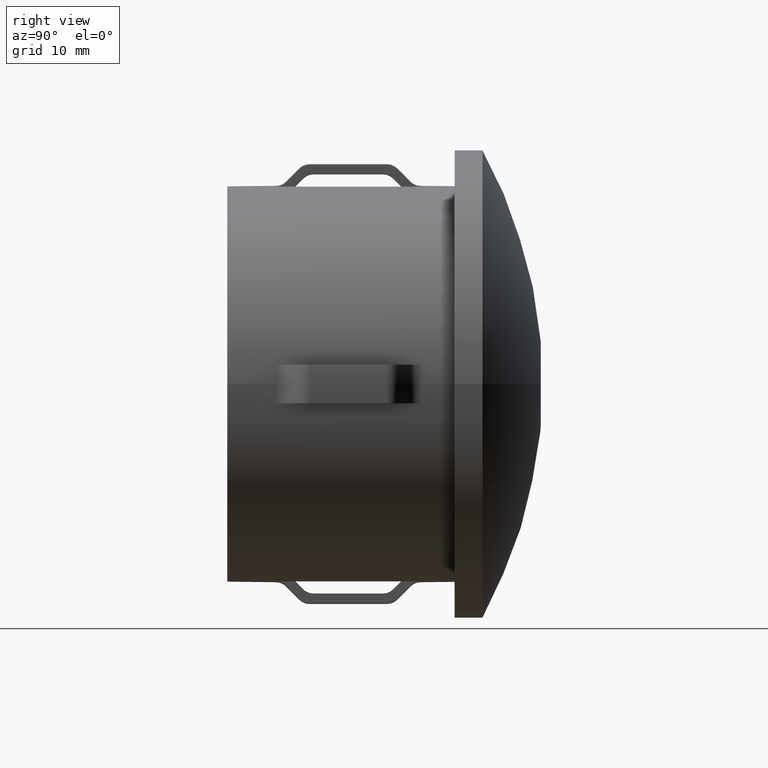
[diagram: clean part render]
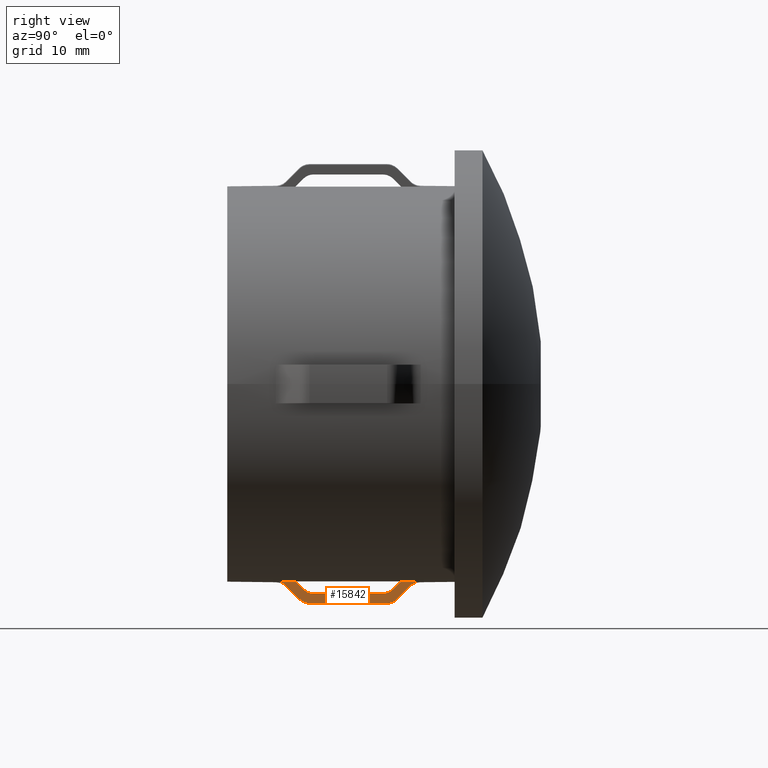
[diagram: same view with one face highlighted and labeled with its STEP entity id]
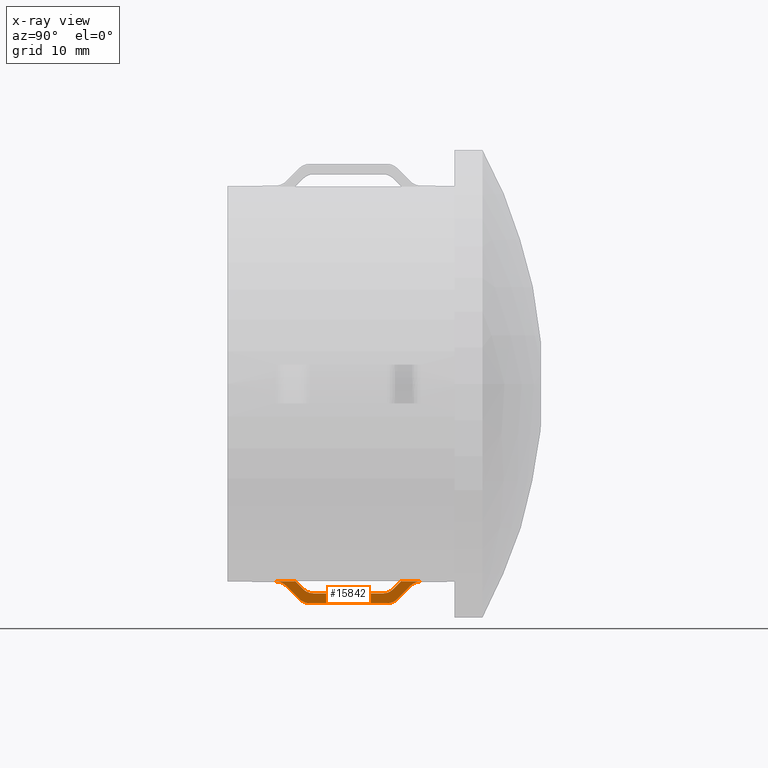
[diagram: x-ray of the same camera — body ghosted, the highlighted face saturated]
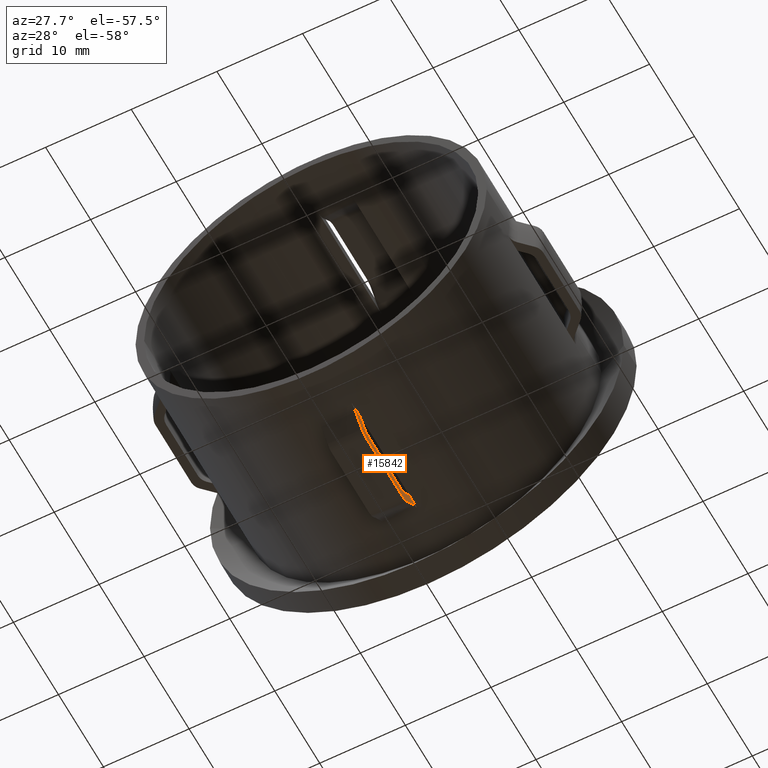
[diagram: same view with one face highlighted and labeled with its STEP entity id]
A machine part, right view. The second image highlights one B-rep face of the part: STEP entity #15842.
The next image is the same camera in x-ray: the body ghosted, the highlighted face saturated — about 0% of this face is hidden behind the body in this view.
A second angle (auxiliary view) of the same face is appended — the face is thin or edge-on in the first view.
In plain terms, the highlighted planar face has unit normal (-1, 0, -0).
Its self-contained STEP definition (entity closure, byte-faithful):
#151 = EDGE_CURVE ( 'NONE', #6780, #7759, #12415, .T. ) ;
#164 = CARTESIAN_POINT ( 'NONE',  ( 2.000000000000002200, 17.64971503335651800, -22.13881031767017800 ) ) ;
#215 = CARTESIAN_POINT ( 'NONE',  ( 2.000000000000002200, 17.73140875742467100, -22.05678271087044400 ) ) ;
#248 = CARTESIAN_POINT ( 'NONE',  ( 2.000000000000001800, 6.621696296803564000, -21.39236945254083700 ) ) ;
#329 = CARTESIAN_POINT ( 'NONE',  ( 2.000000000000002200, 17.81310059500204400, -21.97475322538546600 ) ) ;
#349 = CARTESIAN_POINT ( 'NONE',  ( 2.000000000000002200, 18.93933982822023400, -20.84360699211365300 ) ) ;
#380 = CARTESIAN_POINT ( 'NONE',  ( 2.000000000000002700, 16.90239420996661600, -22.62191776082294900 ) ) ;
#520 = ORIENTED_EDGE ( 'NONE', *, *, #12430, .T. ) ;
#866 = EDGE_CURVE ( 'NONE', #17016, #11808, #985, .T. ) ;
#985 = B_SPLINE_CURVE_WITH_KNOTS ( 'NONE', 3,
 ( #11991, #10879, #380, #9602, #7216, #16474 ),
 .UNSPECIFIED., .F., .F.,
 ( 4, 2, 4 ),
 ( 0.009081134043375228100, 0.009667044988691527600, 0.01025295593400782500 ),
 .UNSPECIFIED. ) ;
#1075 = ORIENTED_EDGE ( 'NONE', *, *, #10528, .T. ) ;
#1158 = EDGE_CURVE ( 'NONE', #2475, #4916, #5022, .T. ) ;
#1386 = EDGE_CURVE ( 'NONE', #14067, #6780, #14751, .T. ) ;
#1457 = CARTESIAN_POINT ( 'NONE',  ( 2.000000000000002200, 20.00000000000000000, -20.40220576310324700 ) ) ;
#1645 = CARTESIAN_POINT ( 'NONE',  ( 2.000000000000002200, 18.18855568121824700, -21.59774631186289200 ) ) ;
#1684 = EDGE_CURVE ( 'NONE', #11025, #7403, #10404, .T. ) ;
#1801 = CARTESIAN_POINT ( 'NONE',  ( 2.000000000000002700, 7.753500041183506200, -22.47260001826553500 ) ) ;
#1926 = CARTESIAN_POINT ( 'NONE',  ( 1.999999999999941200, 8.921572875253817300, -21.65785077056359900 ) ) ;
#2092 = CARTESIAN_POINT ( 'NONE',  ( 2.000000000000001800, 7.050252531694318300, -20.40220576310324700 ) ) ;
#2257 = LINE ( 'NONE', #7532, #6376 ) ;
#2475 = VERTEX_POINT ( 'NONE', #6069 ) ;
#2539 = DIRECTION ( 'NONE',  ( -2.449293598294745400E-017, -1.000000000000000000, -0.0000000000000000000 ) ) ;
#2795 = CARTESIAN_POINT ( 'NONE',  ( 2.000000000000002700, 20.00000000000000000, -22.66191739460727200 ) ) ;
#2938 = VECTOR ( 'NONE', #15361, 1000.000000000000000 ) ;
#2994 = CARTESIAN_POINT ( 'NONE',  ( 2.000000000000002200, 5.407139372087926600, -20.44130786524771500 ) ) ;
#3474 = CARTESIAN_POINT ( 'NONE',  ( 2.000000000000002200, 19.60777366153797600, -20.44120994785984300 ) ) ;
#3525 = CARTESIAN_POINT ( 'NONE',  ( 2.000000000000002200, 17.56801948466537400, -22.22083610714977200 ) ) ;
#4037 = B_SPLINE_CURVE_WITH_KNOTS ( 'NONE', 3,
 ( #16579, #4730, #5877, #15144, #16460, #7253, #8534, #16515 ),
 .UNSPECIFIED., .F., .F.,
 ( 4, 2, 2, 4 ),
 ( 0.008505641674036418200, 0.008798482639833793400, 0.009091323605631168600, 0.009677005537225906800 ),
 .UNSPECIFIED. ) ;
#4216 = PLANE ( 'NONE',  #10769 ) ;
#4390 = CARTESIAN_POINT ( 'NONE',  ( 2.000000000000001800, 6.257473926619709000, -21.02653846795080400 ) ) ;
#4446 = CARTESIAN_POINT ( 'NONE',  ( 2.000000000000002200, 7.446699141100956400, -22.22083610714603500 ) ) ;
#4722 = LINE ( 'NONE', #2795, #16508 ) ;
#4730 = CARTESIAN_POINT ( 'NONE',  ( 2.000000000000001800, 17.08447190062587500, -21.28624425371053200 ) ) ;
#4789 = CARTESIAN_POINT ( 'NONE',  ( 2.000000000000001800, 7.140705344057870700, -20.49309022617566000 ) ) ;
#4845 = CARTESIAN_POINT ( 'NONE',  ( 2.000000000000001800, 7.050252531694318300, -20.40220576310324700 ) ) ;
#4889 = CARTESIAN_POINT ( 'NONE',  ( 2.000000000000002200, 19.80265252604834800, -20.40220576310319700 ) ) ;
#4916 = VERTEX_POINT ( 'NONE', #7897 ) ;
#5022 = B_SPLINE_CURVE_WITH_KNOTS ( 'NONE', 3,
 ( #8270, #9588, #2994, #14926, #8372, #9816 ),
 .UNSPECIFIED., .F., .F.,
 ( 4, 2, 4 ),
 ( 0.009254496920824750700, 0.009840704565716463700, 0.01042691221060817700 ),
 .UNSPECIFIED. ) ;
#5251 = VERTEX_POINT ( 'NONE', #13236 ) ;
#5393 = FACE_OUTER_BOUND ( 'NONE', #6514, .T. ) ;
#5685 = CARTESIAN_POINT ( 'NONE',  ( 2.000000000000002200, 16.09314575050768100, -21.65785077056358100 ) ) ;
#5711 = CARTESIAN_POINT ( 'NONE',  ( 2.000000000000002200, 7.171676713612293400, -21.94470194685922900 ) ) ;
#5826 = VERTEX_POINT ( 'NONE', #2092 ) ;
#5838 = CARTESIAN_POINT ( 'NONE',  ( 2.000000000000002700, 8.114366583345418600, -22.62247926174308100 ) ) ;
#5877 = CARTESIAN_POINT ( 'NONE',  ( 2.000000000000002200, 17.00775000903831100, -21.34942363214788900 ) ) ;
#5891 = CARTESIAN_POINT ( 'NONE',  ( 2.000000000000002200, 7.586443247838528400, -22.36114510638428900 ) ) ;
#5913 = B_SPLINE_CURVE_WITH_KNOTS ( 'NONE', 3,
 ( #15240, #16737, #9989, #7303, #16621, #14096, #13967 ),
 .UNSPECIFIED., .F., .F.,
 ( 4, 3, 4 ),
 ( 0.002246570569327221000, 0.003180430145773975900, 0.003395662598586194300 ),
 .UNSPECIFIED. ) ;
#6069 = CARTESIAN_POINT ( 'NONE',  ( 2.000000000000001800, 5.014718625761436700, -20.40220576310324700 ) ) ;
#6205 = CARTESIAN_POINT ( 'NONE',  ( 2.000000000000002700, 19.24339599958193100, -20.59297624767183500 ) ) ;
#6376 = VECTOR ( 'NONE', #8750, 1000.000000000000000 ) ;
#6433 = ORIENTED_EDGE ( 'NONE', *, *, #1386, .T. ) ;
#6451 = VERTEX_POINT ( 'NONE', #15238 ) ;
#6514 = EDGE_LOOP ( 'NONE', ( #14832, #16418, #15335, #10261, #6433, #7542, #10345, #16441, #6986, #520, #10299, #9273, #9287, #1075 ) ) ;
#6532 = CARTESIAN_POINT ( 'NONE',  ( 2.000000000000002700, 8.529267426006425600, -21.61882315188119100 ) ) ;
#6612 = DIRECTION ( 'NONE',  ( -2.449293598294745400E-017, -1.000000000000000000, -0.0000000000000000000 ) ) ;
#6780 = VERTEX_POINT ( 'NONE', #1926 ) ;
#6787 = CARTESIAN_POINT ( 'NONE',  ( 2.000000000000002700, 16.50735931288072000, -22.66191739460727200 ) ) ;
#6887 = CARTESIAN_POINT ( 'NONE',  ( 2.000000000000002200, 7.446699141100956400, -22.22083610714603500 ) ) ;
#6910 = CARTESIAN_POINT ( 'NONE',  ( 1.999999999999999100, 20.00000000000000000, 2.938513425430441800E-016 ) ) ;
#6969 = DIRECTION ( 'NONE',  ( -1.000000000000000000, 2.449293598294745400E-017, -1.469256712715221700E-016 ) ) ;
#6986 = ORIENTED_EDGE ( 'NONE', *, *, #1158, .T. ) ;
#7216 = CARTESIAN_POINT ( 'NONE',  ( 2.000000000000002200, 17.42988710591840400, -22.35952686324457900 ) ) ;
#7253 = CARTESIAN_POINT ( 'NONE',  ( 2.000000000000002200, 16.48531853786557000, -21.61897279726616400 ) ) ;
#7303 = CARTESIAN_POINT ( 'NONE',  ( 2.000000000000002200, 17.30565884786752000, -21.06407187800683900 ) ) ;
#7403 = VERTEX_POINT ( 'NONE', #7526 ) ;
#7524 = CARTESIAN_POINT ( 'NONE',  ( 2.000000000000001800, 19.07841384121729800, -20.70389422452397100 ) ) ;
#7526 = CARTESIAN_POINT ( 'NONE',  ( 2.000000000000002700, 20.00000000000005300, -20.40220576310318600 ) ) ;
#7532 = CARTESIAN_POINT ( 'NONE',  ( 2.000000000000002200, 20.00000000000000000, -20.40220576310324700 ) ) ;
#7542 = ORIENTED_EDGE ( 'NONE', *, *, #151, .T. ) ;
#7622 = B_SPLINE_CURVE_WITH_KNOTS ( 'NONE', 3,
 ( #8059, #164, #215, #329, #1645, #10882, #16086 ),
 .UNSPECIFIED., .F., .F.,
 ( 4, 3, 4 ),
 ( 0.004147120122152835400, 0.004494426224238110000, 0.006090642564517800800 ),
 .UNSPECIFIED. ) ;
#7713 = EDGE_CURVE ( 'NONE', #13952, #5251, #16523, .T. ) ;
#7759 = VERTEX_POINT ( 'NONE', #13996 ) ;
#7897 = CARTESIAN_POINT ( 'NONE',  ( 2.000000000000001800, 6.075378797541309200, -20.84360699211369200 ) ) ;
#8059 = CARTESIAN_POINT ( 'NONE',  ( 2.000000000000002200, 17.56801948466537400, -22.22083610714977200 ) ) ;
#8146 = CARTESIAN_POINT ( 'NONE',  ( 2.000000000000001800, 6.896674935467547000, -21.66854721844091700 ) ) ;
#8270 = CARTESIAN_POINT ( 'NONE',  ( 2.000000000000001800, 5.014718625761436700, -20.40220576310324700 ) ) ;
#8314 = CARTESIAN_POINT ( 'NONE',  ( 2.000000000000001800, 6.075378797541309200, -20.84360699211369200 ) ) ;
#8372 = CARTESIAN_POINT ( 'NONE',  ( 2.000000000000001800, 5.935911984129018200, -20.70349962001135000 ) ) ;
#8534 = CARTESIAN_POINT ( 'NONE',  ( 2.000000000000002200, 16.28839869969592900, -21.65785077056358400 ) ) ;
#8707 = CARTESIAN_POINT ( 'NONE',  ( 2.000000000000001800, 7.080403149440500400, -20.43250090231392600 ) ) ;
#8750 = DIRECTION ( 'NONE',  ( -2.449293598294745400E-017, -1.000000000000000000, -0.0000000000000000000 ) ) ;
#8894 = CARTESIAN_POINT ( 'NONE',  ( 2.000000000000002700, 30.10000000000000100, -21.65785077056359900 ) ) ;
#8994 = B_SPLINE_CURVE_WITH_KNOTS ( 'NONE', 3,
 ( #8314, #4390, #16058, #248, #8146, #5711, #4446 ),
 .UNSPECIFIED., .F., .F.,
 ( 4, 3, 4 ),
 ( 0.003720086039007983500, 0.004494426394377412800, 0.005663608393907726400 ),
 .UNSPECIFIED. ) ;
#9273 = ORIENTED_EDGE ( 'NONE', *, *, #13850, .F. ) ;
#9287 = ORIENTED_EDGE ( 'NONE', *, *, #866, .T. ) ;
#9588 = CARTESIAN_POINT ( 'NONE',  ( 2.000000000000001800, 5.211857639609599200, -20.40220576310322900 ) ) ;
#9602 = CARTESIAN_POINT ( 'NONE',  ( 2.000000000000002200, 17.26294200077579100, -22.47159454470365600 ) ) ;
#9816 = CARTESIAN_POINT ( 'NONE',  ( 2.000000000000001800, 6.075378797541309200, -20.84360699211369200 ) ) ;
#9823 = EDGE_CURVE ( 'NONE', #5826, #2475, #17007, .T. ) ;
#9969 = VECTOR ( 'NONE', #2539, 1000.000000000000000 ) ;
#9989 = CARTESIAN_POINT ( 'NONE',  ( 2.000000000000002200, 17.52527724574000000, -20.84346574946647500 ) ) ;
#10053 = EDGE_CURVE ( 'NONE', #7759, #5826, #13026, .T. ) ;
#10261 = ORIENTED_EDGE ( 'NONE', *, *, #11182, .T. ) ;
#10299 = ORIENTED_EDGE ( 'NONE', *, *, #7713, .T. ) ;
#10345 = ORIENTED_EDGE ( 'NONE', *, *, #10053, .T. ) ;
#10404 = B_SPLINE_CURVE_WITH_KNOTS ( 'NONE', 3,
 ( #16719, #7524, #6205, #3474, #4889, #14013 ),
 .UNSPECIFIED., .F., .F.,
 ( 4, 2, 4 ),
 ( 0.009273504084595013400, 0.009859735808009487100, 0.01044596753142395900 ),
 .UNSPECIFIED. ) ;
#10464 = CARTESIAN_POINT ( 'NONE',  ( 2.000000000000002200, 17.96446609406720900, -20.40220576310324700 ) ) ;
#10523 = CARTESIAN_POINT ( 'NONE',  ( 1.999999999999941200, 8.921572875253817300, -21.65785077056359900 ) ) ;
#10528 = EDGE_CURVE ( 'NONE', #11808, #11025, #7622, .T. ) ;
#10685 = DIRECTION ( 'NONE',  ( -1.469256712715221700E-016, 0.0000000000000000000, 1.000000000000000000 ) ) ;
#10769 = AXIS2_PLACEMENT_3D ( 'NONE', #6910, #6969, #10685 ) ;
#10879 = CARTESIAN_POINT ( 'NONE',  ( 2.000000000000001800, 16.70528998291491600, -22.66191739460723300 ) ) ;
#10882 = CARTESIAN_POINT ( 'NONE',  ( 2.000000000000002200, 18.56397103355067200, -21.22069982232625700 ) ) ;
#11025 = VERTEX_POINT ( 'NONE', #349 ) ;
#11182 = EDGE_CURVE ( 'NONE', #6451, #14067, #4037, .T. ) ;
#11303 = CARTESIAN_POINT ( 'NONE',  ( 2.000000000000001800, 7.380755060382427700, -20.73428041770122800 ) ) ;
#11687 = CARTESIAN_POINT ( 'NONE',  ( 2.000000000000002200, 7.860912703474021200, -21.21660286089850100 ) ) ;
#11739 = CARTESIAN_POINT ( 'NONE',  ( 2.000000000000002200, 7.999572960508823300, -21.35587782571605000 ) ) ;
#11808 = VERTEX_POINT ( 'NONE', #3525 ) ;
#11991 = CARTESIAN_POINT ( 'NONE',  ( 2.000000000000002700, 16.50735931288072000, -22.66191739460727200 ) ) ;
#12415 = B_SPLINE_CURVE_WITH_KNOTS ( 'NONE', 3,
 ( #10523, #15732, #6532, #14338, #11739, #11687 ),
 .UNSPECIFIED., .F., .F.,
 ( 4, 2, 4 ),
 ( 0.008642550998422548300, 0.009228730044687258300, 0.009814909090951968300 ),
 .UNSPECIFIED. ) ;
#12430 = EDGE_CURVE ( 'NONE', #4916, #13952, #8994, .T. ) ;
#12547 = EDGE_CURVE ( 'NONE', #14542, #6451, #5913, .T. ) ;
#12687 = CARTESIAN_POINT ( 'NONE',  ( 2.000000000000002200, 7.620824840368063000, -20.97545064178190800 ) ) ;
#12753 = CARTESIAN_POINT ( 'NONE',  ( 2.000000000000001800, 7.110554088309498000, -20.46279572193698800 ) ) ;
#13026 = B_SPLINE_CURVE_WITH_KNOTS ( 'NONE', 3,
 ( #13915, #12687, #11303, #4789, #12753, #8707, #4845 ),
 .UNSPECIFIED., .F., .F.,
 ( 4, 3, 4 ),
 ( 0.002159563257574182700, 0.003180430118941530400, 0.003308655296235860700 ),
 .UNSPECIFIED. ) ;
#13236 = CARTESIAN_POINT ( 'NONE',  ( 2.000000000000002200, 8.507359312880781800, -22.66191739460727200 ) ) ;
#13609 = EDGE_CURVE ( 'NONE', #7403, #14542, #2257, .T. ) ;
#13759 = CARTESIAN_POINT ( 'NONE',  ( 2.000000000000002200, 7.446699141100956400, -22.22083610714603500 ) ) ;
#13850 = EDGE_CURVE ( 'NONE', #17016, #5251, #4722, .T. ) ;
#13915 = CARTESIAN_POINT ( 'NONE',  ( 2.000000000000002200, 7.860912703474021200, -21.21660286089850100 ) ) ;
#13952 = VERTEX_POINT ( 'NONE', #6887 ) ;
#13967 = CARTESIAN_POINT ( 'NONE',  ( 2.000000000000002200, 17.15380592228750300, -21.21660286089844400 ) ) ;
#13996 = CARTESIAN_POINT ( 'NONE',  ( 2.000000000000002200, 7.860912703474021200, -21.21660286089850100 ) ) ;
#14013 = CARTESIAN_POINT ( 'NONE',  ( 2.000000000000002700, 20.00000000000005300, -20.40220576310318600 ) ) ;
#14067 = VERTEX_POINT ( 'NONE', #5685 ) ;
#14096 = CARTESIAN_POINT ( 'NONE',  ( 2.000000000000002200, 17.20442437479155700, -21.16576000698787400 ) ) ;
#14338 = CARTESIAN_POINT ( 'NONE',  ( 2.000000000000002200, 8.165218886846098200, -21.46728672226493400 ) ) ;
#14542 = VERTEX_POINT ( 'NONE', #10464 ) ;
#14751 = LINE ( 'NONE', #8894, #2938 ) ;
#14832 = ORIENTED_EDGE ( 'NONE', *, *, #1684, .T. ) ;
#14926 = CARTESIAN_POINT ( 'NONE',  ( 2.000000000000001800, 5.770908970278061800, -20.59278702187923200 ) ) ;
#15144 = CARTESIAN_POINT ( 'NONE',  ( 2.000000000000001300, 16.84563220253526300, -21.45825504586064600 ) ) ;
#15156 = CARTESIAN_POINT ( 'NONE',  ( 2.000000000000002200, 8.311482309229289100, -22.66191739460727900 ) ) ;
#15238 = CARTESIAN_POINT ( 'NONE',  ( 2.000000000000002200, 17.15380592228750300, -21.21660286089844400 ) ) ;
#15240 = CARTESIAN_POINT ( 'NONE',  ( 2.000000000000002200, 17.96446609406720900, -20.40220576310324700 ) ) ;
#15335 = ORIENTED_EDGE ( 'NONE', *, *, #12547, .T. ) ;
#15361 = DIRECTION ( 'NONE',  ( -2.904862207577519400E-015, -1.000000000000000000, -0.0000000000000000000 ) ) ;
#15732 = CARTESIAN_POINT ( 'NONE',  ( 2.000000000000001800, 8.724393709285305200, -21.65785077056359500 ) ) ;
#15842 = ADVANCED_FACE ( 'NONE', ( #5393 ), #4216, .F. ) ;
#16058 = CARTESIAN_POINT ( 'NONE',  ( 2.000000000000001800, 6.439580033678480800, -21.20945901655813900 ) ) ;
#16086 = CARTESIAN_POINT ( 'NONE',  ( 2.000000000000002200, 18.93933982822023400, -20.84360699211365300 ) ) ;
#16418 = ORIENTED_EDGE ( 'NONE', *, *, #13609, .T. ) ;
#16441 = ORIENTED_EDGE ( 'NONE', *, *, #9823, .T. ) ;
#16460 = CARTESIAN_POINT ( 'NONE',  ( 2.000000000000002200, 16.75946763897822600, -21.50471543824892300 ) ) ;
#16473 = CARTESIAN_POINT ( 'NONE',  ( 2.000000000000002200, 8.507359312880781800, -22.66191739460727200 ) ) ;
#16474 = CARTESIAN_POINT ( 'NONE',  ( 2.000000000000002200, 17.56801948466537400, -22.22083610714977200 ) ) ;
#16508 = VECTOR ( 'NONE', #6612, 1000.000000000000000 ) ;
#16515 = CARTESIAN_POINT ( 'NONE',  ( 2.000000000000002200, 16.09314575050768100, -21.65785077056358100 ) ) ;
#16523 = B_SPLINE_CURVE_WITH_KNOTS ( 'NONE', 3,
 ( #13759, #5891, #1801, #5838, #15156, #16473 ),
 .UNSPECIFIED., .F., .F.,
 ( 4, 2, 4 ),
 ( 0.009092024628386128500, 0.009678059385338850400, 0.01026409414229157100 ),
 .UNSPECIFIED. ) ;
#16579 = CARTESIAN_POINT ( 'NONE',  ( 2.000000000000002200, 17.15380592228750300, -21.21660286089844400 ) ) ;
#16621 = CARTESIAN_POINT ( 'NONE',  ( 2.000000000000002200, 17.25504202250842700, -21.11491635182891400 ) ) ;
#16719 = CARTESIAN_POINT ( 'NONE',  ( 2.000000000000002200, 18.93933982822023400, -20.84360699211365300 ) ) ;
#16737 = CARTESIAN_POINT ( 'NONE',  ( 2.000000000000002200, 17.74488017839428600, -20.62284422364838200 ) ) ;
#17007 = LINE ( 'NONE', #1457, #9969 ) ;
#17016 = VERTEX_POINT ( 'NONE', #6787 ) ;